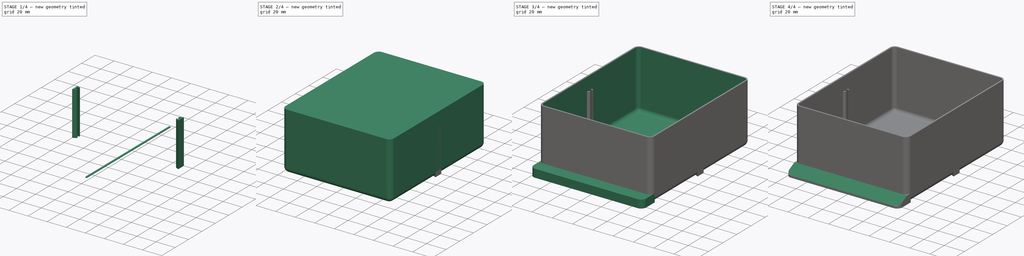
[diagram: build sequence overview — one tinted view per stage of 4, left to right]
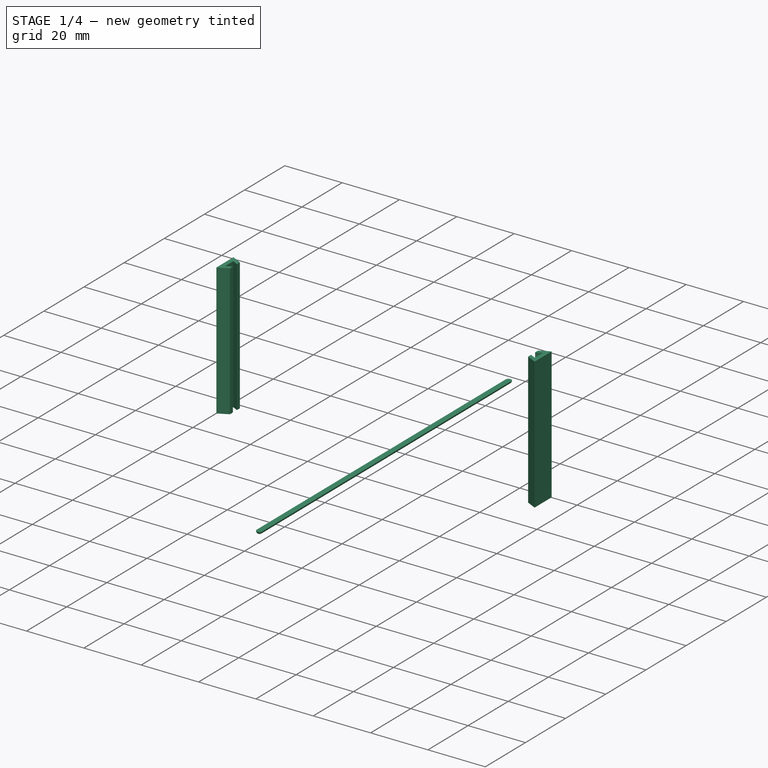
[diagram: stage 1 of 4 — iso view after this stage's code; geometry added in this stage tinted green]
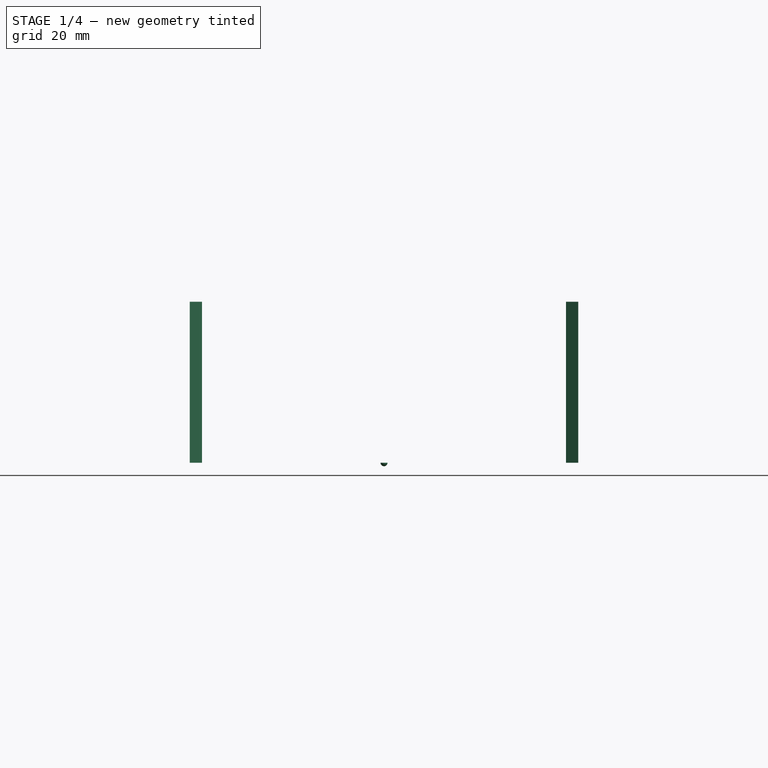
[diagram: stage 1 of 4 — front view after this stage's code; geometry added in this stage tinted green]
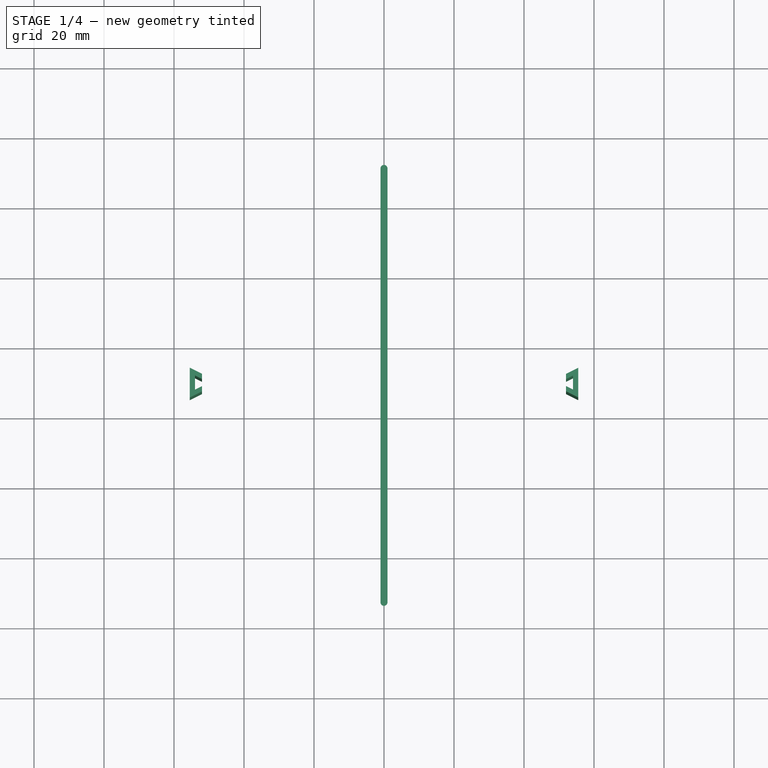
[diagram: stage 1 of 4 — top view after this stage's code; geometry added in this stage tinted green]
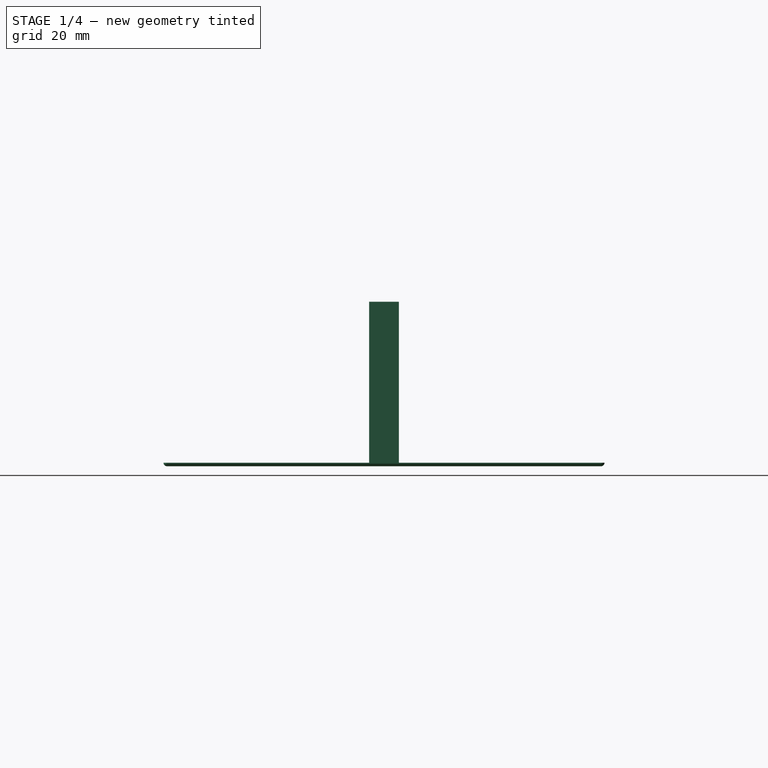
[diagram: stage 1 of 4 — right view after this stage's code; geometry added in this stage tinted green]
FCSTD DOCUMENT  (FreeCAD 0.20R29410 (Git))
Label: SmallPartsBin
License: All rights reserved
LicenseURL: http://en.wikipedia.org/wiki/All_rights_reserved
objects: Sketcher::SketchObject×11, Part::Part2DObjectPython×7, PartDesign::Body×6, PartDesign::Pad×4, PartDesign::Thickness×2, PartDesign::Pocket×2, PartDesign::Revolution×2, Spreadsheet::Sheet×1, PartDesign::Fillet×1, PartDesign::Hole×1
note: 48 computed .brp shape members not serialized (recipe doc carries the construction recipe); baked Part::Feature solids carry a one-line shape summary decoded from their .brp

FEATURE [PartDesign::Body] Body002  label="RailLeft"
  Group = -> [Clone2D005,Revolution]
  Origin = -> Origin002
  Placement = pos=(-46.5,0,0) rot=(0,0,1;0rad)
  Tip = -> Revolution
  expr: .Placement.Base.x = -<<Spreadsheet>>.rail_offset_x
FEATURE [PartDesign::Revolution] Revolution001
  Angle = 180
  Axis = (0,1,0)
  Base = (0,0,0)
  Profile = -> Clone2D006
  ReferenceAxis = -> Clone2D006 [V_Axis]
  Refine = true
  Reversed = true
FEATURE [PartDesign::Body] Body003  label="RailRight"
  Group = -> [Clone2D006,Revolution001]
  Origin = -> Origin003
  Placement = pos=(46.5,0,0) rot=(0,0,1;0rad)
  Tip = -> Revolution001
  expr: .Placement.Base.x = <<Spreadsheet>>.rail_offset_x
FEATURE [Sketcher::SketchObject] Sketch011  label="DividerHolder"
  FullyConstrained = true
  MapMode = 5
  Support = -> [XY_Plane005]
  expr: Constraints[1] = <<Spreadsheet>>.bin_inner_y / 2
  expr: Constraints[20] = <<Spreadsheet>>.thickness
  expr: Constraints[21] = <<Spreadsheet>>.thickness
  expr: Constraints[24] = <<Spreadsheet>>.divider_x
  expr: Constraints[3] = Spreadsheet.bin_inner_x - 2 * <<Spreadsheet>>.thickness
  expr: Constraints[6] = <<Spreadsheet>>.divider_gap
  expr: Constraints[8] = <<Spreadsheet>>.divider_gap + 2
  sketch-geometry (18):
    g0: GeomPoint X=0 Y=69.5 Z=0
    g1: LineSegment StartX=-54 StartY=69.5 StartZ=0 EndX=54 EndY=69.5 EndZ=0
    g2: LineSegment StartX=-52 StartY=70.5 StartZ=0 EndX=-54 EndY=71.5 EndZ=0
    g3: LineSegment StartX=-52 StartY=68.5 StartZ=0 EndX=-54 EndY=67.5 EndZ=0
    g4: LineSegment StartX=-54 StartY=71.5 StartZ=0 EndX=-54 EndY=67.5 EndZ=0
    g5: LineSegment StartX=-52 StartY=70.5 StartZ=0 EndX=-52 EndY=72 EndZ=0
    g6: LineSegment StartX=-52 StartY=72 StartZ=0 EndX=-55.5 EndY=73.75 EndZ=0
    g7: LineSegment StartX=-55.5 StartY=73.75 StartZ=0 EndX=-55.5 EndY=65.25 EndZ=0
    g8: LineSegment StartX=-55.5 StartY=65.25 StartZ=0 EndX=-52 EndY=67 EndZ=0
    g9: LineSegment StartX=-52 StartY=67 StartZ=0 EndX=-52 EndY=68.5 EndZ=0
    g10: LineSegment StartX=52 StartY=70.5 StartZ=0 EndX=52 EndY=72 EndZ=0
    g11: LineSegment StartX=52 StartY=72 StartZ=0 EndX=55.5 EndY=73.75 EndZ=0
    g12: LineSegment StartX=55.5 StartY=73.75 StartZ=0 EndX=55.5 EndY=65.25 EndZ=0
    g13: LineSegment StartX=55.5 StartY=65.25 StartZ=0 EndX=52 EndY=67 EndZ=0
    g14: LineSegment StartX=52 StartY=67 StartZ=0 EndX=52 EndY=68.5 EndZ=0
    g15: LineSegment StartX=52 StartY=68.5 StartZ=0 EndX=54 EndY=67.5 EndZ=0
    g16: LineSegment StartX=54 StartY=67.5 StartZ=0 EndX=54 EndY=71.5 EndZ=0
    g17: LineSegment StartX=54 StartY=71.5 StartZ=0 EndX=52 EndY=70.5 EndZ=0
  constraints (41):
    c: PointOnObject(g0,g-2)
    c: DistanceY(g-1,g0) = 69.5
    c: PointOnObject(g0,g1)
    c: DistanceX(g1,g1) = 108
    c: Symmetric(g1,g1,g-2)
    c: Symmetric(g2,g3,g1)
    c: DistanceY(g3,g2) = 2
    c: Symmetric(g2,g3,g1)
    c: DistanceY(g3,g2) = 4
    c: Coincident(g4,g2)
    c: Coincident(g4,g3)
    c: Coincident(g2,g5)
    c: Coincident(g5,g6)
    c: Coincident(g6,g7)
    c: Coincident(g7,g8)
    c: Coincident(g8,g9)
    c: Coincident(g9,g3)
    c: Vertical(g5)
    c: Symmetric(g6,g7,g1)
    c: Symmetric(g5,g8,g1)
    c: DistanceY(g2,g5) = 1.5
    c: DistanceX(g6,g2) = 1.5
    c: Vertical(g2,g1)
    c: Parallel(g6,g2)
    c: DistanceX(g3,g3) = 2
    c: Coincident(g10,g11)
    c: Coincident(g11,g12)
    c: Coincident(g12,g13)
    c: Coincident(g13,g14)
    c: Coincident(g14,g15)
    c: Coincident(g15,g16)
    c: Coincident(g16,g17)
    c: Coincident(g17,g10)
    c: Symmetric(g10,g2,g-2)
    c: Symmetric(g10,g5,g-2)
    c: Symmetric(g16,g2,g-2)
    c: Symmetric(g11,g6,g-2)
    c: Symmetric(g3,g15,g-2)
    c: Symmetric(g14,g3,g-2)
    c: Symmetric(g13,g8,g-2)
    c: Symmetric(g12,g7,g-2)
FEATURE [Part::Part2DObjectPython] Clone2D007  label="DividerHolder (2D)"  # Draft 2D object (typed FeaturePython)
  Fuse = false
  Objects = -> [Sketch011]
  Scale = (1,1,1)
FEATURE [Sketcher::SketchObject] Sketch012
  ExternalGeometry = -> [Clone2D007]
  FullyConstrained = true
  MapMode = 5
  Support = -> [XY_Plane005]
  sketch-geometry (8):
    g0: LineSegment StartX=-55.5 StartY=73.75 StartZ=0 EndX=-52 EndY=72 EndZ=0
    g1: LineSegment StartX=-52 StartY=72 StartZ=0 EndX=-52 EndY=70.5 EndZ=0
    g2: LineSegment StartX=-52 StartY=70.5 StartZ=0 EndX=-54 EndY=71.5 EndZ=0
    g3: LineSegment StartX=-54 StartY=71.5 StartZ=0 EndX=-54 EndY=67.5 EndZ=0
    g4: LineSegment StartX=-54 StartY=67.5 StartZ=0 EndX=-52 EndY=68.5 EndZ=0
    g5: LineSegment StartX=-52 StartY=68.5 StartZ=0 EndX=-52 EndY=67 EndZ=0
    g6: LineSegment StartX=-52 StartY=67 StartZ=0 EndX=-55.5 EndY=65.25 EndZ=0
    g7: LineSegment StartX=-55.5 StartY=65.25 StartZ=0 EndX=-55.5 EndY=73.75 EndZ=0
  constraints (16):
    c: Coincident(g0,g1)
    c: Coincident(g1,g2)
    c: Coincident(g2,g3)
    c: Coincident(g3,g4)
    c: Coincident(g4,g5)
    c: Coincident(g5,g6)
    c: Coincident(g6,g7)
    c: Coincident(g7,g0)
    c: Coincident(g0,g-3)
    c: Coincident(g0,g-5)
    c: Coincident(g1,g-5)
    c: Coincident(g2,g-7)
    c: Coincident(g3,g-7)
    c: Coincident(g4,g-8)
    c: Coincident(g5,g-9)
    c: Coincident(g6,g-9)
FEATURE [PartDesign::Pad] Pad002
  Direction = (0,0,1)
  Length = 46
  Length2 = 10
  Profile = -> Sketch012
  ReferenceAxis = -> Sketch012 [N_Axis]
  Refine = true
  Type = 0
  expr: Length = <<Spreadsheet>>.divider_z
FEATURE [PartDesign::Body] Body005  label="DividerHolderLeft"
  Group = -> [Clone2D007,Sketch012,Pad002]
  Origin = -> Origin005
  Placement = pos=(0,0,5) rot=(0,0,1;0rad)
  Tip = -> Pad002
  expr: .Placement.Base.z = <<Spreadsheet>>.fillet_radius
FEATURE [Part::Part2DObjectPython] Clone2D008  label="DividerHolder (2D)001"  # Draft 2D object (typed FeaturePython)
  Fuse = false
  Objects = -> [Sketch011]
  Scale = (1,1,1)
FEATURE [Sketcher::SketchObject] Sketch013
  ExternalGeometry = -> [Clone2D008]
  FullyConstrained = true
  MapMode = 5
  Support = -> [XY_Plane006]
  sketch-geometry (8):
    g0: LineSegment StartX=54 StartY=71.5 StartZ=0 EndX=52 EndY=70.5 EndZ=0
    g1: LineSegment StartX=52 StartY=70.5 StartZ=0 EndX=52 EndY=72 EndZ=0
    g2: LineSegment StartX=52 StartY=72 StartZ=0 EndX=55.5 EndY=73.75 EndZ=0
    g3: LineSegment StartX=55.5 StartY=73.75 StartZ=0 EndX=55.5 EndY=65.25 EndZ=0
    g4: LineSegment StartX=55.5 StartY=65.25 StartZ=0 EndX=52 EndY=67 EndZ=0
    g5: LineSegment StartX=52 StartY=67 StartZ=0 EndX=52 EndY=68.5 EndZ=0
    g6: LineSegment StartX=52 StartY=68.5 StartZ=0 EndX=54 EndY=67.5 EndZ=0
    g7: LineSegment StartX=54 StartY=67.5 StartZ=0 EndX=54 EndY=71.5 EndZ=0
  constraints (16):
    c: Coincident(g0,g1)
    c: Coincident(g1,g2)
    c: Coincident(g2,g3)
    c: Coincident(g3,g4)
    c: Coincident(g4,g5)
    c: Coincident(g5,g6)
    c: Coincident(g6,g7)
    c: Coincident(g7,g0)
    c: Coincident(g0,g-6)
    c: Coincident(g0,g-5)
    c: Coincident(g1,g-4)
    c: Coincident(g2,g-7)
    c: Coincident(g3,g-8)
    c: Coincident(g4,g-10)
    c: Coincident(g5,g-10)
    c: Coincident(g6,g-9)
FEATURE [PartDesign::Pad] Pad003
  Direction = (0,0,1)
  Length = 46
  Length2 = 10
  Profile = -> Sketch013
  ReferenceAxis = -> Sketch013 [N_Axis]
  Refine = true
  Type = 0
  expr: Length = <<Spreadsheet>>.divider_z
FEATURE [PartDesign::Body] Body006  label="DividerHolderRight"
  Group = -> [Clone2D008,Sketch013,Pad003]
  Origin = -> Origin006
  Placement = pos=(0,0,5) rot=(0,0,1;0rad)
  Tip = -> Pad003
  expr: .Placement.Base.z = <<Spreadsheet>>.fillet_radius
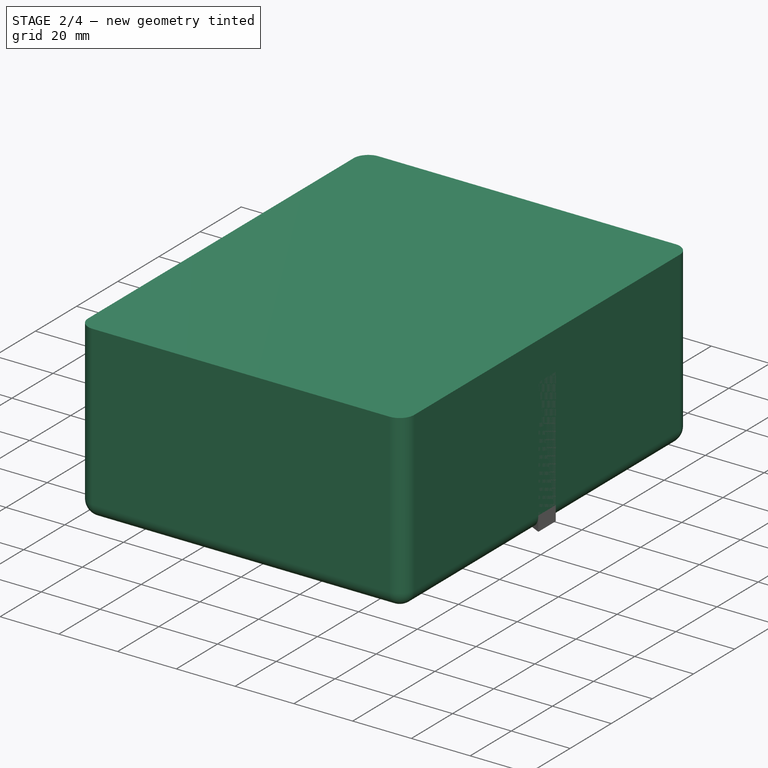
[diagram: stage 2 of 4 — iso view after this stage's code; geometry added in this stage tinted green]
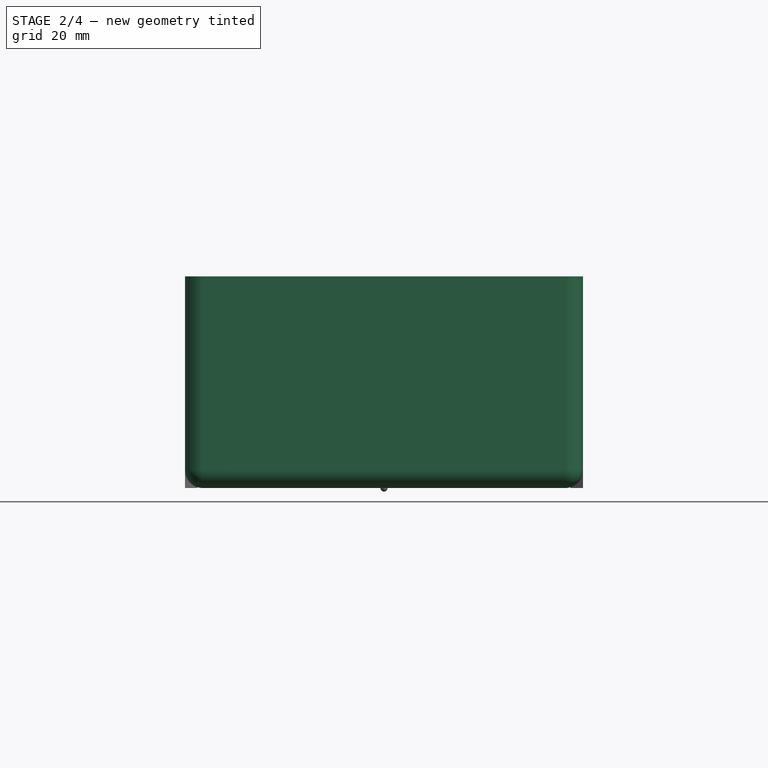
[diagram: stage 2 of 4 — front view after this stage's code; geometry added in this stage tinted green]
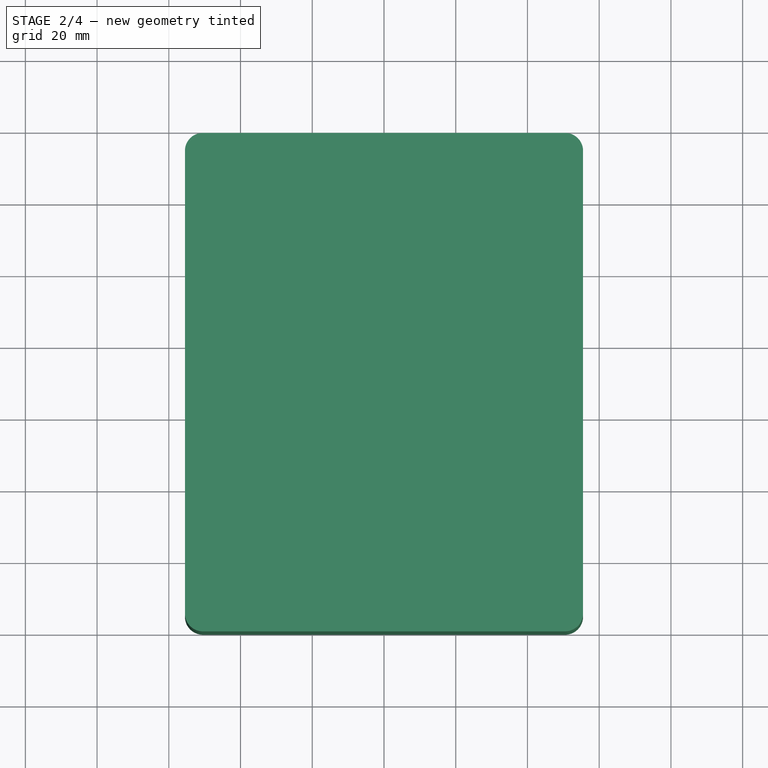
[diagram: stage 2 of 4 — top view after this stage's code; geometry added in this stage tinted green]
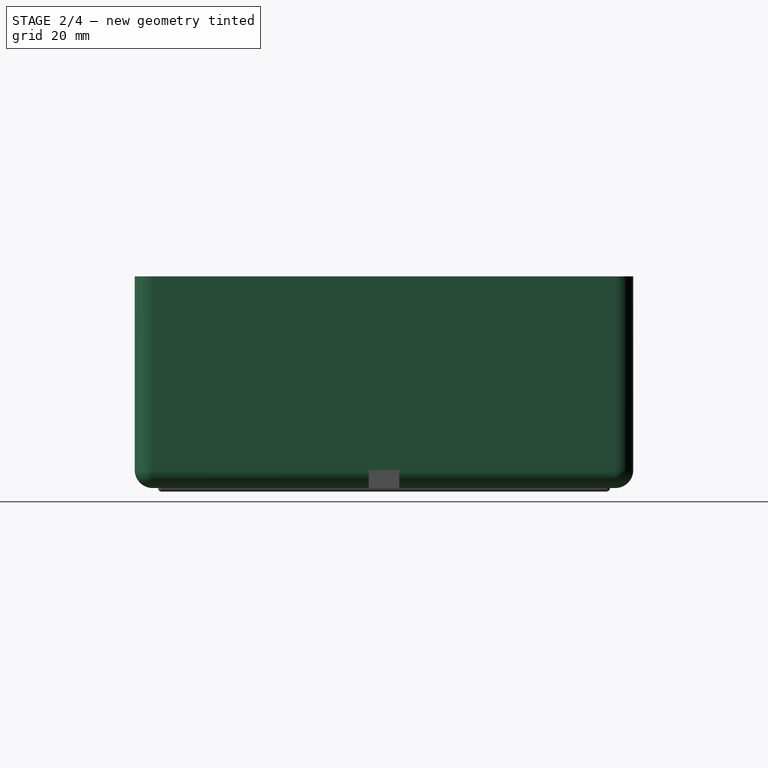
[diagram: stage 2 of 4 — right view after this stage's code; geometry added in this stage tinted green]
FEATURE [Spreadsheet::Sheet] Spreadsheet
  cells = C1=Small Part Bin; D1=Small Part Bin Lg; E1=Notes; A2=bin_inner_x; B2(bin_inner_x)=111; C2=55; D2=111; E2=inner' is misnamed and should be removed; A3=bin_inner_y; B3(bin_inner_y)=139; C3=139; D3=139; E3=inner' is misnamed and should be removed; A4=bin_inner_z; B4(bin_inner_z)=59; C4=37; D4=59; E4=inner' is misnamed and should be removed; A5=fillet_radius; B5(fillet_radius)=5; C5=5; D5=5; A6=handle_y; B6(handle_y)=12; C6=12; D6=12; A7=handle_x; B7(handle_x)=109; C7=53; D7=109; A8=handle_z_min; B8(handle_z_min)=2; C8=2; D8=2; A9=handle_z_max; B9(handle_z_max)=8; C9=8; D9=8; A10=thickness; B10(thickness)=1.5; C10=1; D10=1.5; A11=rail_x; B11(rail_x)=2; C11=2; D11=2; A12=divider_gap; B12(divider_gap)=2; C12=2; D12=2; A13=divider_x; B13(divider_x)=2; C13=2; D13=2; B14=calculated fields below; A15=divider_z; B15(divider_z)==bin_inner_z - fillet_radius - 8; A16=rail_offset_x; B16(rail_offset_x)==bin_inner_x / 2 - (fillet_radius + 4)
FEATURE [Sketcher::SketchObject] Sketch  label="SketchXY"
  FullyConstrained = true
  MapMode = 5
  expr: Constraints[13] = Spreadsheet.bin_inner_x
  expr: Constraints[16] = <<Spreadsheet>>.fillet_radius
  expr: Constraints[17] = <<Spreadsheet>>.bin_inner_y
  expr: Constraints[27] = <<Spreadsheet>>.fillet_radius
  expr: Constraints[28] = <<Spreadsheet>>.handle_y
  expr: Constraints[32] = <<Spreadsheet>>.fillet_radius * 2
  expr: Constraints[35] = <<Spreadsheet>>.bin_inner_y / 2
  sketch-geometry (15):
    g0: LineSegment StartX=50.5 StartY=0 StartZ=0 EndX=-50.5 EndY=0 EndZ=0
    g1: ArcOfCircle CenterX=-50.5 CenterY=5 CenterZ=0 NormalX=0 NormalY=0 NormalZ=1 AngleXU=0 Radius=5 StartAngle=3.14159 EndAngle=4.71239
    g2: LineSegment StartX=-55.5 StartY=5 StartZ=0 EndX=-55.5 EndY=134 EndZ=0
    g3: ArcOfCircle CenterX=-50.5 CenterY=134 CenterZ=0 NormalX=0 NormalY=0 NormalZ=1 AngleXU=0 Radius=5 StartAngle=1.5708 EndAngle=3.14159
    g4: LineSegment StartX=-50.5 StartY=139 StartZ=0 EndX=50.5 EndY=139 EndZ=0
    g5: ArcOfCircle CenterX=50.5 CenterY=134 CenterZ=0 NormalX=0 NormalY=0 NormalZ=1 AngleXU=0 Radius=5 StartAngle=1.7e-15 EndAngle=1.5708
    g6: LineSegment StartX=55.5 StartY=134 StartZ=0 EndX=55.5 EndY=5 EndZ=0
    g7: ArcOfCircle CenterX=50.5 CenterY=5 CenterZ=0 NormalX=0 NormalY=0 NormalZ=1 AngleXU=0 Radius=5 StartAngle=4.71239 EndAngle=6.28319
    g8: LineSegment StartX=-55.5 StartY=5 StartZ=0 EndX=-55.5 EndY=-7 EndZ=0
    g9: ArcOfCircle CenterX=-50.5 CenterY=-7 CenterZ=0 NormalX=0 NormalY=0 NormalZ=1 AngleXU=0 Radius=5 StartAngle=3.14159 EndAngle=4.71239
    g10: LineSegment StartX=-50.5 StartY=-12 StartZ=0 EndX=50.5 EndY=-12 EndZ=0
    g11: ArcOfCircle CenterX=50.5 CenterY=-7 CenterZ=0 NormalX=0 NormalY=0 NormalZ=1 AngleXU=0 Radius=5 StartAngle=4.71239 EndAngle=6.28319
    g12: LineSegment StartX=55.5 StartY=-7 StartZ=0 EndX=55.5 EndY=5 EndZ=0
    g13: Circle CenterX=0 CenterY=129 CenterZ=0 NormalX=0 NormalY=0 NormalZ=1 AngleXU=0 Radius=1
    g14: GeomPoint X=0 Y=69.5 Z=0
  constraints (36):
    c: PointOnObject(g0,g-1)
    c: PointOnObject(g0,g-1)
    c: Tangent(g0,g1) = 1.5708
    c: Tangent(g1,g2) = 1.5708
    c: Tangent(g2,g3) = 1.5708
    c: Tangent(g3,g4) = 1.5708
    c: Tangent(g4,g5) = 1.5708
    c: Tangent(g5,g6) = 1.5708
    c: Tangent(g6,g7) = 1.5708
    c: Vertical(g2)
    c: Vertical(g6)
    c: Horizontal(g4)
    c: Symmetric(g2,g5,g-2)
    c: DistanceX(g2,g5) = 111
    c: Tangent(g0,g7) = 1.5708
    c: Equal(g3,g1)
    c: Radius(g3) = 5
    c: DistanceY(g0,g3) = 139
    c: Vertical(g4,g0)
    c: Coincident(g1,g8)
    c: Tangent(g8,g9) = -1.5708
    c: Tangent(g9,g10) = -1.5708
    c: Tangent(g10,g11) = -1.5708
    c: Tangent(g11,g12) = -1.5708
    c: Coincident(g6,g12)
    c: Horizontal(g10)
    c: Equal(g9,g11)
    c: Radius(g9) = 5
    c: DistanceY(g9,g0) = 12
    c: Vertical(g0,g9)
    c: Vertical(g0,g10)
    c: PointOnObject(g13,g-2)
    c: DistanceY(g13,g3) = 10
    c: Radius(g13) = 1
    c: PointOnObject(g14,g-2)
    c: DistanceY(g0,g14) = 69.5
FEATURE [Sketcher::SketchObject] Sketch001  label="SketchYZ"
  ExternalGeometry = -> [Sketch]
  FullyConstrained = true
  MapMode = 5
  Placement = pos=(0,0,0) rot=(0.57735,0.57735,0.57735;2.0944rad)
  expr: .Constraints.VerticalGuide = <<Spreadsheet>>.bin_inner_z
  expr: Constraints[3] = <<Spreadsheet>>.handle_z_max
  expr: Constraints[5] = <<Spreadsheet>>.handle_y
  expr: Constraints[8] = <<Spreadsheet>>.handle_z_min
  sketch-geometry (5):
    g0: LineSegment StartX=0 StartY=0 StartZ=0 EndX=0 EndY=59 EndZ=0
    g1: LineSegment StartX=0 StartY=51 StartZ=0 EndX=-12 EndY=51 EndZ=0
    g2: LineSegment StartX=-12 StartY=51 StartZ=0 EndX=-12 EndY=53 EndZ=0
    g3: LineSegment StartX=-12 StartY=53 StartZ=0 EndX=0 EndY=59 EndZ=0
    g4: GeomPoint X=2.016e-13 Y=0 Z=0
  constraints (13):
    c: Coincident(g0,g-1)
    c: PointOnObject(g0,g-2)
    c: DistanceY(g0,g0) = 59  'VerticalGuide'
    c: DistanceY(g1,g3) = 8
    c: Horizontal(g1)
    c: DistanceX(g1,g1) = 12
    c: Coincident(g2,g1)
    c: Vertical(g2)
    c: DistanceY(g2,g2) = 2
    c: Coincident(g3,g2)
    c: Coincident(g4,g-3)  'bin_y_filleted_connection_point'
    c: Coincident(g0,g3)
    c: PointOnObject(g1,g0)
FEATURE [Part::Part2DObjectPython] Clone2D001  label="SketchYZ (2D)"  # Draft 2D object (typed FeaturePython)
  Fuse = false
  Objects = -> [Sketch001]
  Placement = pos=(0,0,-51) rot=(0.57735,0.57735,0.57735;2.0944rad)
  Scale = (1,1,1)
  expr: .Placement.Base.z = -<<Spreadsheet>>.bin_inner_z + <<Spreadsheet>>.handle_z_max
FEATURE [Part::Part2DObjectPython] Clone2D  label="SketchXY (2D)"  # Draft 2D object (typed FeaturePython)
  Fuse = false
  Objects = -> [Sketch]
  Scale = (1,1,1)
FEATURE [Sketcher::SketchObject] Sketch004
  FullyConstrained = true
  MapMode = 5
  Support = -> [XY_Plane]
  expr: Constraints[26] = <<Spreadsheet>>.fillet_radius
  expr: Constraints[4] = <<Spreadsheet>>.bin_inner_y
  expr: Constraints[5] = Spreadsheet.bin_inner_x
  sketch-geometry (12):
    g0: LineSegment StartX=-50.5 StartY=139 StartZ=0 EndX=50.5 EndY=139 EndZ=0
    g1: LineSegment StartX=55.5 StartY=134 StartZ=0 EndX=55.5 EndY=5 EndZ=0
    g2: LineSegment StartX=50.5 StartY=0 StartZ=0 EndX=-50.5 EndY=0 EndZ=0
    g3: LineSegment StartX=-55.5 StartY=5 StartZ=0 EndX=-55.5 EndY=134 EndZ=0
    g4: ArcOfCircle CenterX=-50.5 CenterY=134 CenterZ=0 NormalX=0 NormalY=0 NormalZ=1 AngleXU=0 Radius=5 StartAngle=1.5708 EndAngle=3.14159
    g5: GeomPoint X=-55.5 Y=139 Z=0
    g6: ArcOfCircle CenterX=50.5 CenterY=134 CenterZ=0 NormalX=0 NormalY=0 NormalZ=1 AngleXU=0 Radius=5 StartAngle=1e-16 EndAngle=1.5708
    g7: GeomPoint X=55.5 Y=139 Z=0
    g8: ArcOfCircle CenterX=-50.5 CenterY=5 CenterZ=0 NormalX=0 NormalY=0 NormalZ=1 AngleXU=0 Radius=5 StartAngle=3.14159 EndAngle=4.71239
    g9: GeomPoint X=-55.5 Y=0 Z=0
    g10: ArcOfCircle CenterX=50.5 CenterY=5 CenterZ=0 NormalX=0 NormalY=0 NormalZ=1 AngleXU=0 Radius=5 StartAngle=4.71239 EndAngle=6.28319
    g11: GeomPoint X=55.5 Y=0 Z=0
  constraints (27):
    c: Horizontal(g0)
    c: Vertical(g1)
    c: Vertical(g3)
    c: PointOnObject(g11,g-1)
    c: DistanceY(g9,g5) = 139
    c: DistanceX(g5,g7) = 111
    c: Symmetric(g9,g11,g-2)
    c: PointOnObject(g5,g0)
    c: PointOnObject(g5,g3)
    c: Tangent(g0,g4) = 1.5708
    c: Tangent(g3,g4) = 1.5708
    c: PointOnObject(g7,g0)
    c: PointOnObject(g7,g1)
    c: Tangent(g0,g6) = 1.5708
    c: Tangent(g1,g6) = 1.5708
    c: PointOnObject(g9,g3)
    c: PointOnObject(g9,g2)
    c: Tangent(g3,g8) = 1.5708
    c: Tangent(g2,g8) = 1.5708
    c: PointOnObject(g11,g1)
    c: PointOnObject(g11,g2)
    c: Tangent(g1,g10) = 1.5708
    c: Tangent(g2,g10) = 1.5708
    c: Equal(g4,g6)
    c: Equal(g4,g10)
    c: Equal(g4,g8)
    c: Radius(g4) = 5
FEATURE [PartDesign::Pad] Pad
  Direction = (0,0,1)
  Length = 59
  Length2 = 10
  Profile = -> Sketch004
  ReferenceAxis = -> Sketch004 [N_Axis]
  Refine = true
  Type = 0
  expr: Length = <<Spreadsheet>>.bin_inner_z
FEATURE [Part::Part2DObjectPython] Clone2D002  label="SketchXY (2D)001"  # Draft 2D object (typed FeaturePython)
  Fuse = false
  Objects = -> [Sketch]
  Scale = (1,1,1)
FEATURE [PartDesign::Fillet] Fillet
  Base = -> Pad [Edge21,Edge18,Edge15,Edge12,Edge9,Edge6,Edge3,Edge23]
  BaseFeature = -> Pad
  Radius = 5
  Refine = true
  SupportTransform = false
  UseAllEdges = false
  expr: Radius = <<Spreadsheet>>.fillet_radius
FEATURE [PartDesign::Body] Body  label="BinBody"
  Group = -> [Clone2D,Sketch004,Pad,Fillet,Thickness,Sketch009,Hole]
  Origin = -> Origin
  Tip = -> Hole
FEATURE [Sketcher::SketchObject] Sketch010  label="Rail"
  FullyConstrained = true
  MapMode = 5
  Support = -> [XY_Plane002]
  expr: Constraints[7] = <<Spreadsheet>>.bin_inner_y - (2 * <<Spreadsheet>>.fillet_radius + 2 * <<Spreadsheet>>.thickness)
  expr: Constraints[8] = <<Spreadsheet>>.fillet_radius + <<Spreadsheet>>.thickness
  expr: Constraints[9] = <<Spreadsheet>>.rail_x / 2
  sketch-geometry (4):
    g0: LineSegment StartX=0 StartY=132.5 StartZ=0 EndX=0 EndY=6.5 EndZ=0
    g1: ArcOfCircle CenterX=0 CenterY=7.5 CenterZ=0 NormalX=0 NormalY=0 NormalZ=1 AngleXU=0 Radius=1 StartAngle=3.14159 EndAngle=4.71239
    g2: LineSegment StartX=-1 StartY=7.5 StartZ=0 EndX=-1 EndY=131.5 EndZ=0
    g3: ArcOfCircle CenterX=0 CenterY=131.5 CenterZ=0 NormalX=0 NormalY=0 NormalZ=1 AngleXU=0 Radius=1 StartAngle=1.5708 EndAngle=3.14159
  constraints (11):
    c: PointOnObject(g0,g-2)
    c: PointOnObject(g0,g-2)
    c: Perpendicular(g0,g1) = 1.5708
    c: Tangent(g1,g2) = 1.5708
    c: Tangent(g2,g3) = 1.5708
    c: Coincident(g3,g0)
    c: Vertical(g2)
    c: DistanceY(g0,g0) = 126
    c: DistanceY(g-1,g0) = 6.5
    c: DistanceX(g1,g0) = 1
    c: Radius(g3) = 1
FEATURE [Part::Part2DObjectPython] Clone2D005  label="Rail (2D)"  # Draft 2D object (typed FeaturePython)
  Fuse = false
  Objects = -> [Sketch010]
  Scale = (1,1,1)
FEATURE [Part::Part2DObjectPython] Clone2D006  label="Rail (2D)001"  # Draft 2D object (typed FeaturePython)
  Fuse = false
  Objects = -> [Sketch010]
  Scale = (1,1,1)
FEATURE [PartDesign::Revolution] Revolution
  Angle = 180
  Axis = (0,1,0)
  Base = (0,0,0)
  Profile = -> Clone2D005
  ReferenceAxis = -> Clone2D005 [V_Axis]
  Refine = true
  Reversed = true
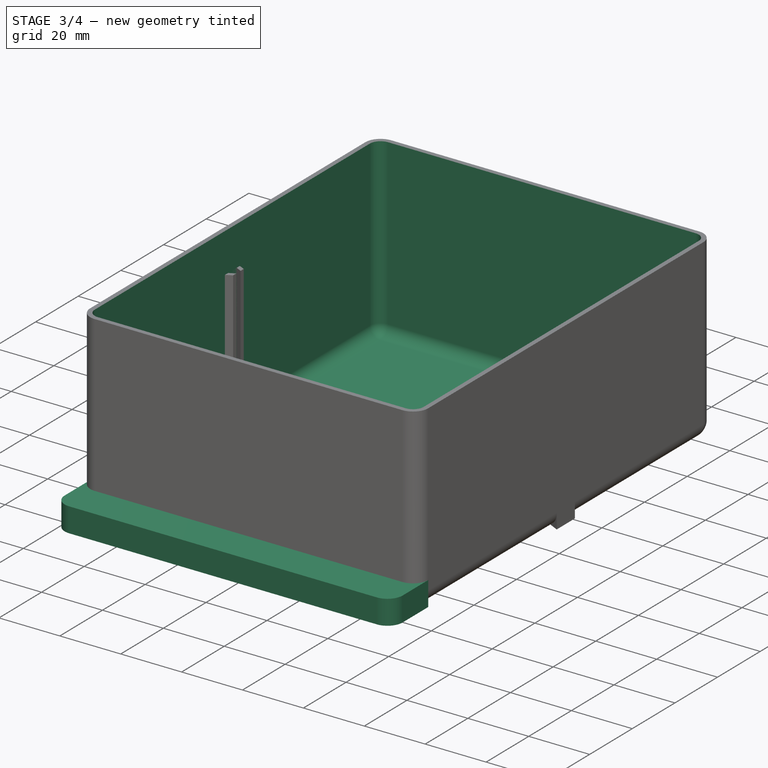
[diagram: stage 3 of 4 — iso view after this stage's code; geometry added in this stage tinted green]
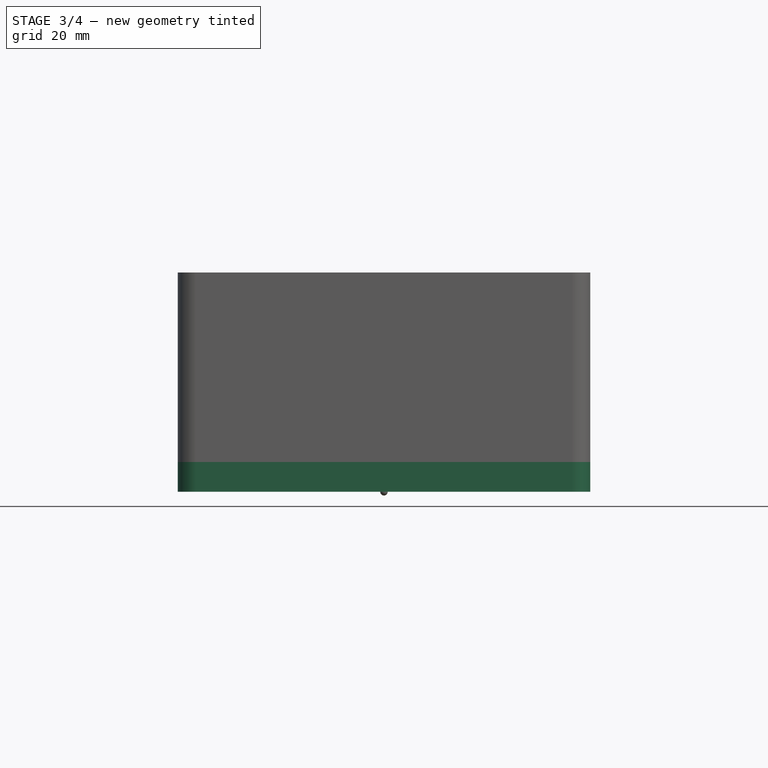
[diagram: stage 3 of 4 — front view after this stage's code; geometry added in this stage tinted green]
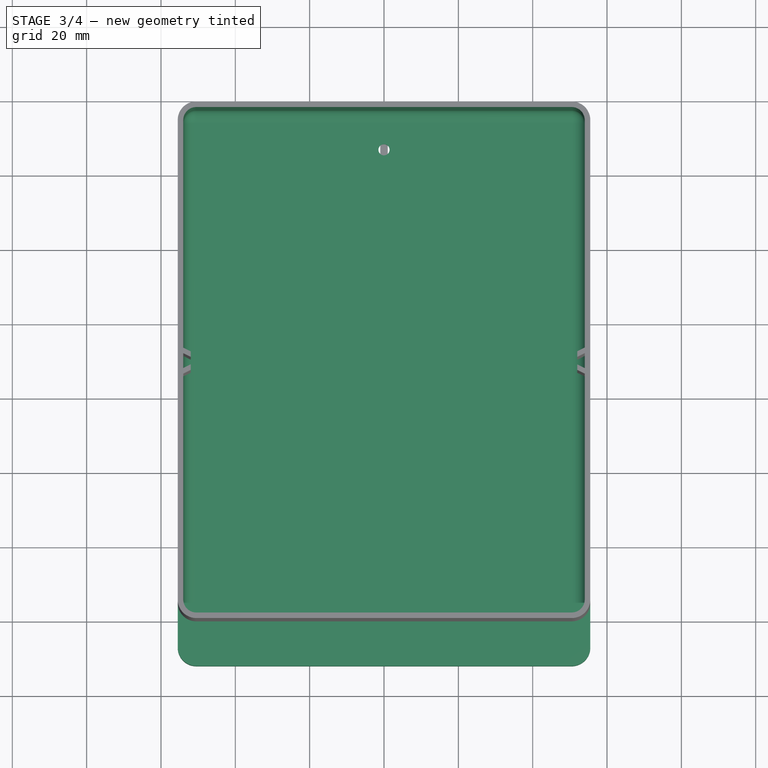
[diagram: stage 3 of 4 — top view after this stage's code; geometry added in this stage tinted green]
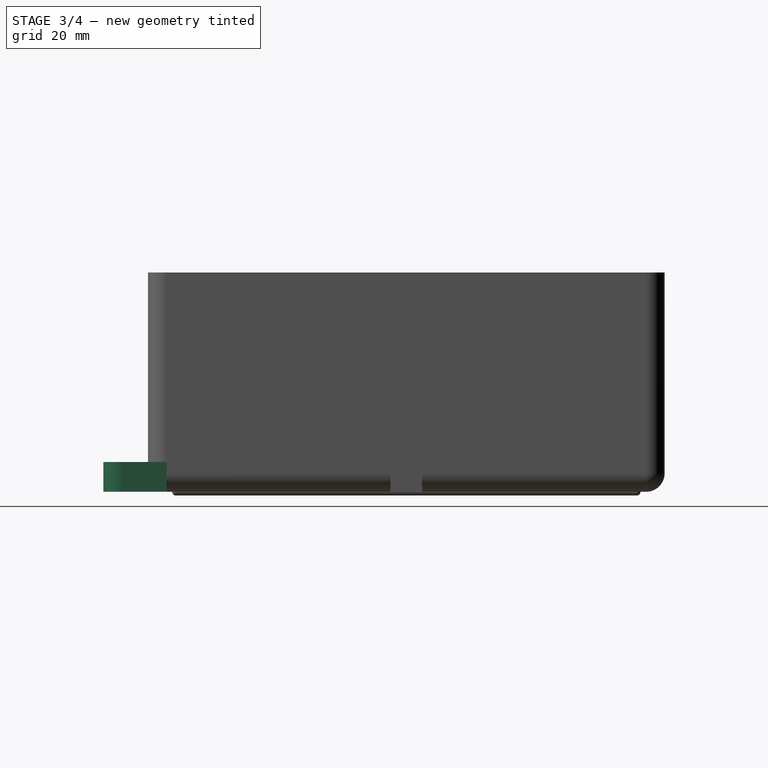
[diagram: stage 3 of 4 — right view after this stage's code; geometry added in this stage tinted green]
FEATURE [PartDesign::Thickness] Thickness
  Base = -> Fillet [Face4]
  BaseFeature = -> Fillet
  Intersection = false
  Join = 0
  Mode = 0
  Refine = true
  Reversed = true
  SupportTransform = false
  Value = 1.5
  expr: Value = <<Spreadsheet>>.thickness
FEATURE [Sketcher::SketchObject] Sketch005
  FullyConstrained = true
  MapMode = 5
  Support = -> [XY_Plane001]
  expr: Constraints[10] = <<Spreadsheet>>.fillet_radius
  expr: Constraints[13] = <<Spreadsheet>>.fillet_radius
  expr: Constraints[14] = <<Spreadsheet>>.handle_y
  expr: Constraints[7] = Spreadsheet.bin_inner_x
  sketch-geometry (6):
    g0: LineSegment StartX=-55.5 StartY=-7 StartZ=0 EndX=-55.5 EndY=5 EndZ=0
    g1: LineSegment StartX=-55.5 StartY=5 StartZ=0 EndX=55.5 EndY=5 EndZ=0
    g2: LineSegment StartX=55.5 StartY=5 StartZ=0 EndX=55.5 EndY=-7 EndZ=0
    g3: ArcOfCircle CenterX=50.5 CenterY=-7 CenterZ=0 NormalX=0 NormalY=0 NormalZ=1 AngleXU=0 Radius=5 StartAngle=4.71239 EndAngle=6.28319
    g4: LineSegment StartX=50.5 StartY=-12 StartZ=0 EndX=-50.5 EndY=-12 EndZ=0
    g5: ArcOfCircle CenterX=-50.5 CenterY=-7 CenterZ=0 NormalX=0 NormalY=0 NormalZ=1 AngleXU=0 Radius=5 StartAngle=3.14159 EndAngle=4.71239
  constraints (15):
    c: Vertical(g0)
    c: Vertical(g2)
    c: Tangent(g2,g3) = 1.5708
    c: Tangent(g3,g4) = 1.5708
    c: Tangent(g4,g5) = 1.5708
    c: Tangent(g5,g0) = 1.5708
    c: Horizontal(g4)
    c: DistanceX(g0,g2) = 111
    c: Symmetric(g0,g2,g-2)
    c: Equal(g3,g5)
    c: Radius(g3) = 5
    c: Coincident(g1,g0)
    c: Coincident(g1,g2)
    c: DistanceY(g-1,g0) = 5
    c: DistanceY(g4,g-1) = 12
FEATURE [PartDesign::Pad] Pad001
  Direction = (0,0,1)
  Length = 8
  Length2 = 10
  Profile = -> Sketch005
  ReferenceAxis = -> Sketch005 [N_Axis]
  Refine = true
  Type = 0
  expr: Length = <<Spreadsheet>>.handle_z_max
FEATURE [PartDesign::Body] Body001  label="HandleBody"
  Group = -> [Clone2D001,Clone2D002,Sketch005,Pad001,Sketch006,Pocket,Thickness001,Sketch007,Pocket001]
  Origin = -> Origin001
  Placement = pos=(0,0,51) rot=(0,0,1;0rad)
  Tip = -> Pocket001
  expr: .Placement.Base.z = <<Spreadsheet>>.bin_inner_z - <<Spreadsheet>>.handle_z_max
FEATURE [Sketcher::SketchObject] Sketch009
  FullyConstrained = false
  MapMode = 5
  Support = -> [XY_Plane]
  sketch-geometry (1):
    g0: Circle CenterX=0 CenterY=127 CenterZ=0 NormalX=0 NormalY=0 NormalZ=1 AngleXU=0 Radius=1
FEATURE [PartDesign::Hole] Hole
  BaseFeature = -> Thickness
  CustomThreadClearance = 0
  Depth = 25
  DepthType = 0
  Diameter = 3
  DrillForDepth = false
  DrillPoint = 1
  DrillPointAngle = 118
  HoleCutCountersinkAngle = 90
  HoleCutCustomValues = false
  HoleCutDepth = 0
  HoleCutDiameter = 6.1
  HoleCutType = 0
  ModelThread = false
  Profile = -> Sketch009
  Refine = true
  Reversed = true
  Tapered = false
  TaperedAngle = 90
  ThreadClass = 0
  ThreadDepth = 25
  ThreadDepthType = 0
  ThreadDirection = 0
  ThreadFit = 0
  ThreadSize = 0
  ThreadType = 0
  Threaded = false
  UseCustomThreadClearance = false
  expr: Diameter = 3mm
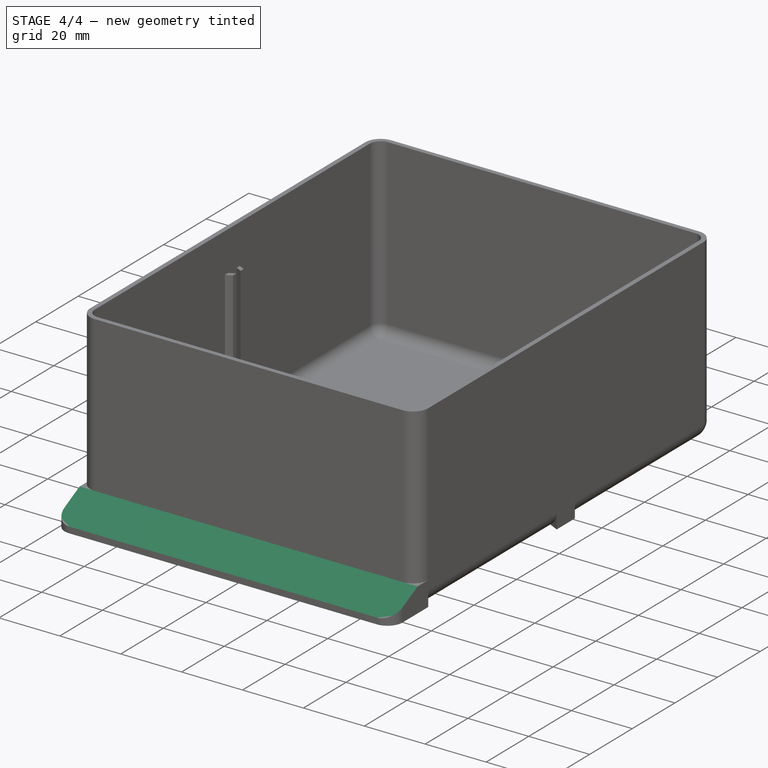
[diagram: stage 4 of 4 — iso view after this stage's code; geometry added in this stage tinted green]
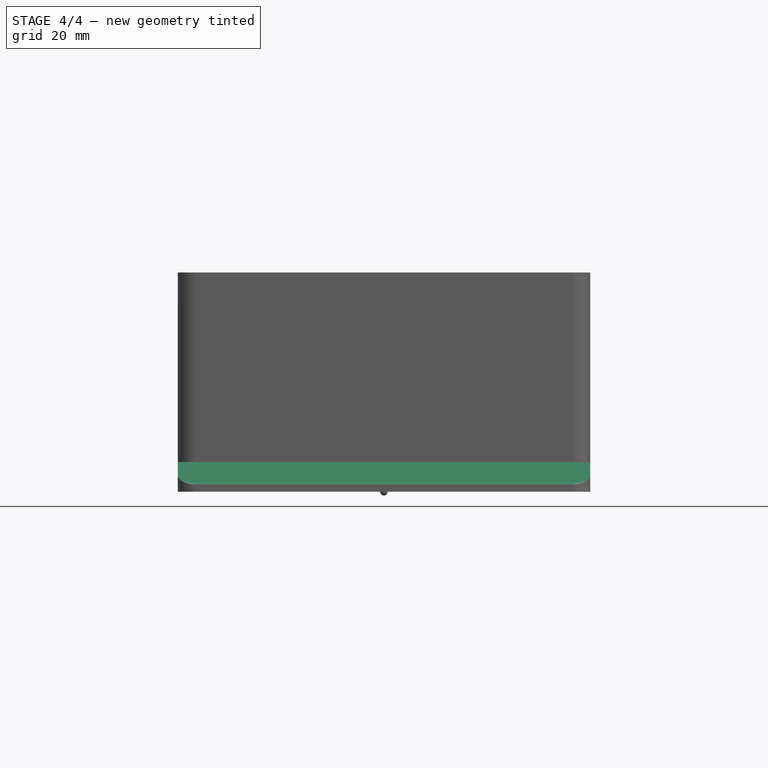
[diagram: stage 4 of 4 — front view after this stage's code; geometry added in this stage tinted green]
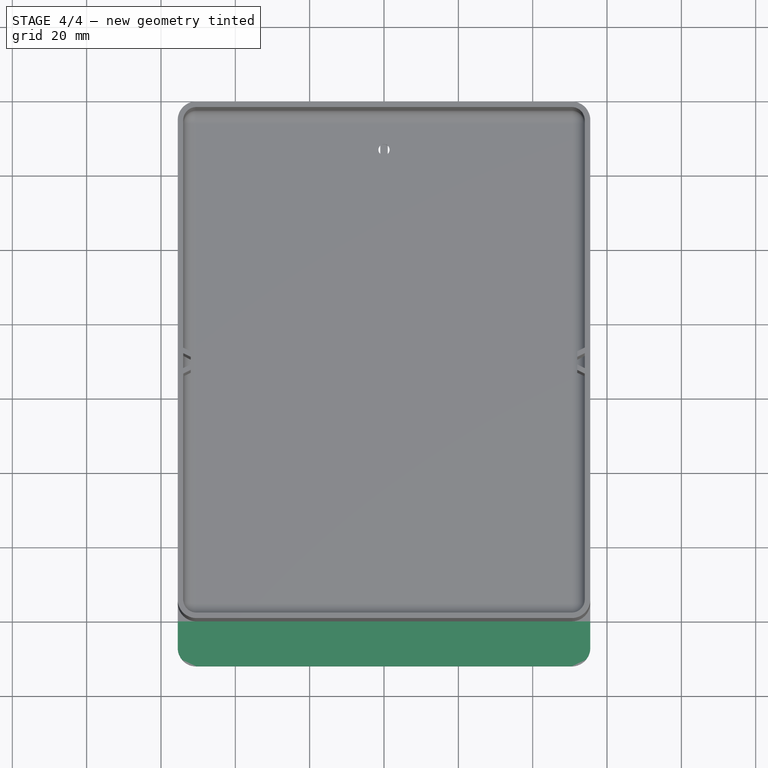
[diagram: stage 4 of 4 — top view after this stage's code; geometry added in this stage tinted green]
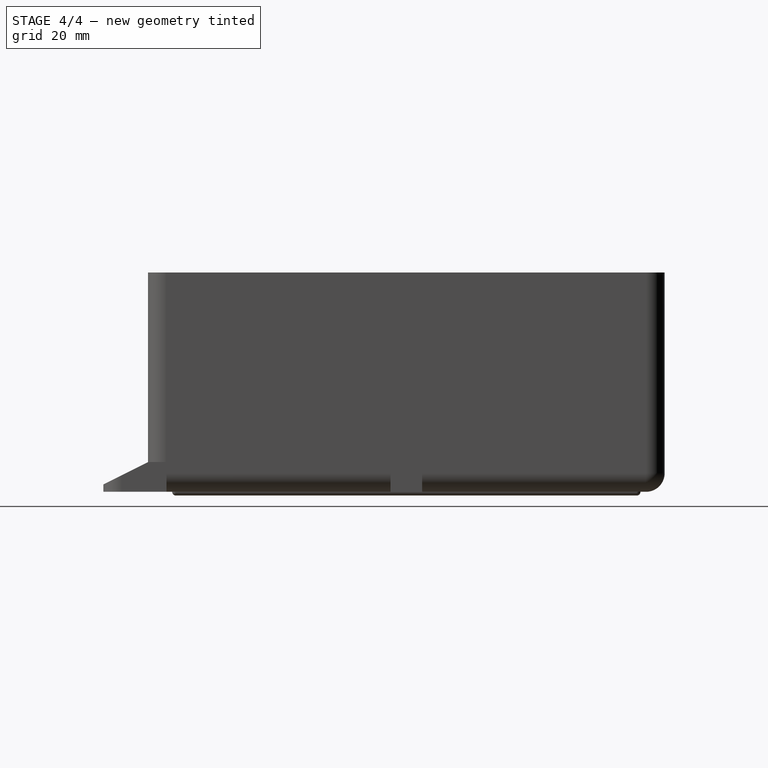
[diagram: stage 4 of 4 — right view after this stage's code; geometry added in this stage tinted green]
FEATURE [Sketcher::SketchObject] Sketch006
  ExternalGeometry = -> [Clone2D001]
  FullyConstrained = true
  MapMode = 5
  Placement = pos=(0,0,0) rot=(0.57735,0.57735,0.57735;2.0944rad)
  Support = -> [YZ_Plane001]
  sketch-geometry (8):
    g0: LineSegment StartX=0 StartY=10 StartZ=0 EndX=-14 EndY=10 EndZ=0
    g1: LineSegment StartX=-14 StartY=10 StartZ=0 EndX=-14 EndY=-2 EndZ=0
    g2: LineSegment StartX=-14 StartY=-2 StartZ=0 EndX=0 EndY=-2 EndZ=0
    g3: LineSegment StartX=0 StartY=-2 StartZ=0 EndX=0 EndY=0 EndZ=0
    g4: LineSegment StartX=0 StartY=0 StartZ=0 EndX=-12 EndY=-3.3e-15 EndZ=0
    g5: LineSegment StartX=-12 StartY=-3.3e-15 StartZ=0 EndX=-12 EndY=2 EndZ=0
    g6: LineSegment StartX=-12 StartY=2 StartZ=0 EndX=0 EndY=8 EndZ=0
    g7: LineSegment StartX=0 StartY=8 StartZ=0 EndX=0 EndY=10 EndZ=0
  constraints (20):
    c: PointOnObject(g0,g-2)
    c: Coincident(g0,g1)
    c: Vertical(g1)
    c: Coincident(g1,g2)
    c: PointOnObject(g2,g-2)
    c: Horizontal(g2)
    c: Coincident(g2,g3)
    c: Coincident(g3,g-5)
    c: Coincident(g3,g4)
    c: Coincident(g4,g-5)
    c: Coincident(g4,g5)
    c: Coincident(g5,g-4)
    c: Coincident(g5,g6)
    c: Coincident(g6,g-3)
    c: Coincident(g6,g7)
    c: Coincident(g7,g0)
    c: DistanceY(g6,g0) = 2
    c: DistanceY(g2,g3) = 2
    c: DistanceX(g0,g5) = 2
    c: Horizontal(g0)
FEATURE [PartDesign::Pocket] Pocket
  BaseFeature = -> Pad001
  Direction = (-1,2e-16,-3e-16)
  Length = 111
  Length2 = 5
  Midplane = true
  Profile = -> Sketch006
  ReferenceAxis = -> Sketch006 [N_Axis]
  Refine = true
  Type = 0
  expr: Length = Spreadsheet.bin_inner_x
FEATURE [PartDesign::Thickness] Thickness001
  Base = -> Pocket [Face9]
  BaseFeature = -> Pocket
  Intersection = false
  Join = 0
  Mode = 0
  Refine = true
  Reversed = true
  SupportTransform = false
  Value = 1.5
  expr: Value = <<Spreadsheet>>.thickness
FEATURE [Sketcher::SketchObject] Sketch007
  FullyConstrained = true
  MapMode = 5
  Support = -> [XY_Plane001]
  expr: Constraints[18] = <<Spreadsheet>>.fillet_radius
  expr: Constraints[6] = Spreadsheet.bin_inner_x
  expr: Constraints[8] = <<Spreadsheet>>.fillet_radius * 2
  sketch-geometry (8):
    g0: LineSegment StartX=-55.5 StartY=10 StartZ=0 EndX=55.5 EndY=10 EndZ=0
    g1: LineSegment StartX=55.5 StartY=10 StartZ=0 EndX=55.5 EndY=5 EndZ=0
    g2: LineSegment StartX=50.5 StartY=0 StartZ=0 EndX=-50.5 EndY=0 EndZ=0
    g3: LineSegment StartX=-55.5 StartY=5 StartZ=0 EndX=-55.5 EndY=10 EndZ=0
    g4: ArcOfCircle CenterX=-50.5 CenterY=5 CenterZ=0 NormalX=0 NormalY=0 NormalZ=1 AngleXU=0 Radius=5 StartAngle=3.14159 EndAngle=4.71239
    g5: GeomPoint X=-55.5 Y=0 Z=0
    g6: ArcOfCircle CenterX=50.5 CenterY=5 CenterZ=0 NormalX=0 NormalY=0 NormalZ=1 AngleXU=0 Radius=5 StartAngle=4.71239 EndAngle=6.28319
    g7: GeomPoint X=55.5 Y=0 Z=0
  constraints (19):
    c: Coincident(g0,g1)
    c: Coincident(g3,g0)
    c: Horizontal(g2)
    c: Vertical(g1)
    c: Vertical(g3)
    c: PointOnObject(g7,g-1)
    c: DistanceX(g0,g0) = 111
    c: Symmetric(g0,g0,g-2)
    c: DistanceY(g5,g0) = 10
    c: PointOnObject(g5,g2)
    c: PointOnObject(g5,g3)
    c: Tangent(g2,g4) = 1.5708
    c: Tangent(g3,g4) = 1.5708
    c: PointOnObject(g7,g1)
    c: PointOnObject(g7,g2)
    c: Tangent(g1,g6) = 1.5708
    c: Tangent(g2,g6) = 1.5708
    c: Equal(g4,g6)
    c: Radius(g4) = 5
FEATURE [PartDesign::Pocket] Pocket001
  BaseFeature = -> Thickness001
  Direction = (0,0,-1)
  Length = 8
  Length2 = 5
  Profile = -> Sketch007
  ReferenceAxis = -> Sketch007 [N_Axis]
  Refine = true
  Reversed = true
  Type = 0
  expr: Length = <<Spreadsheet>>.handle_z_max
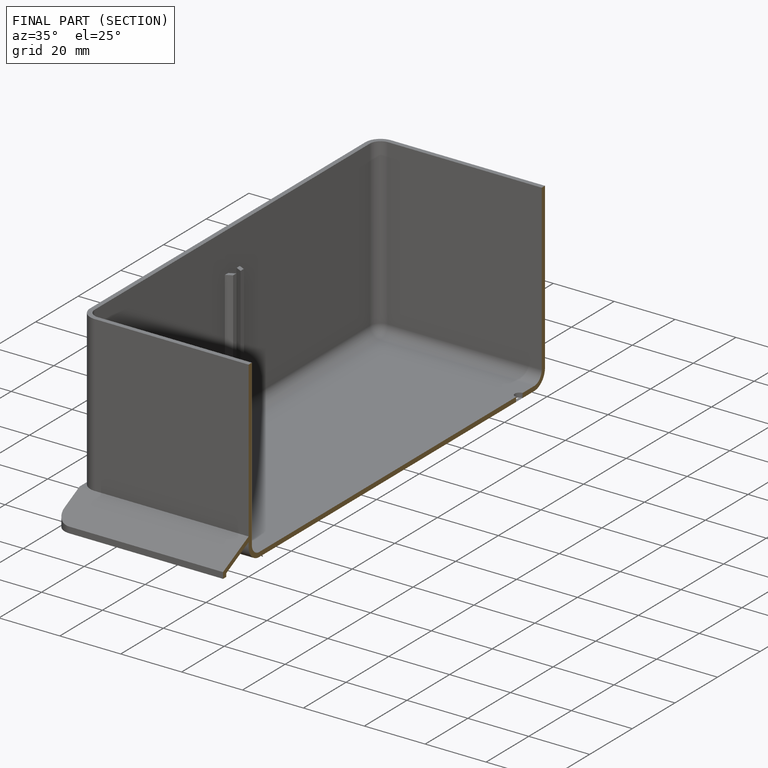
[diagram: finished part — half-section view (interior)]
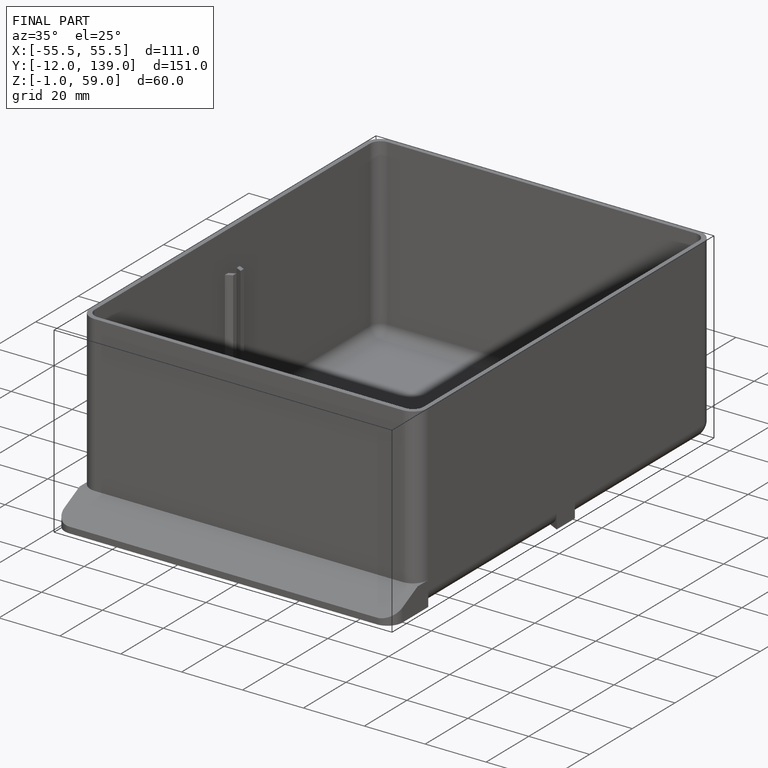
[diagram: finished part — iso view with bounding-box wireframe]
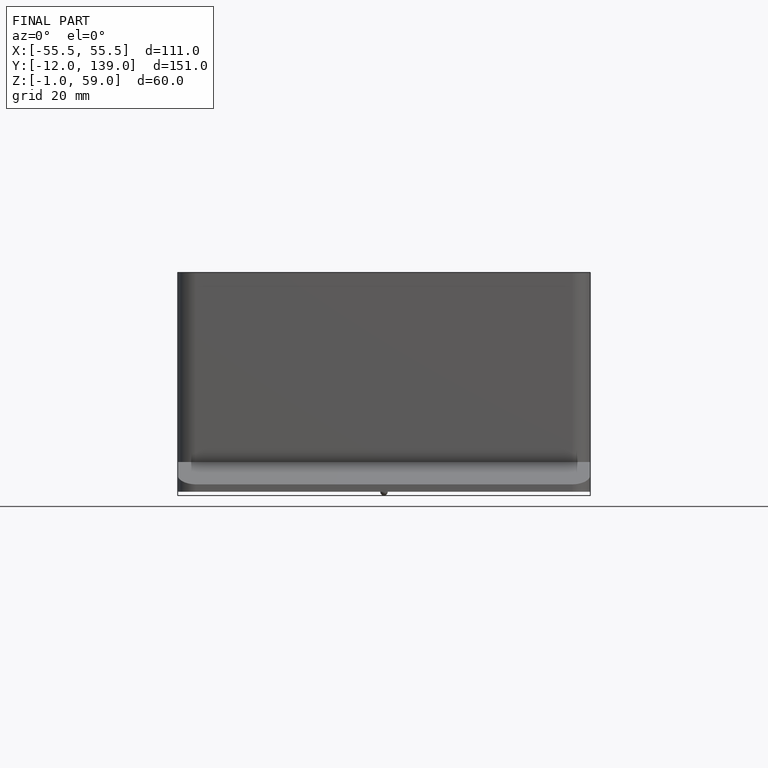
[diagram: finished part — front view with bounding-box wireframe]
